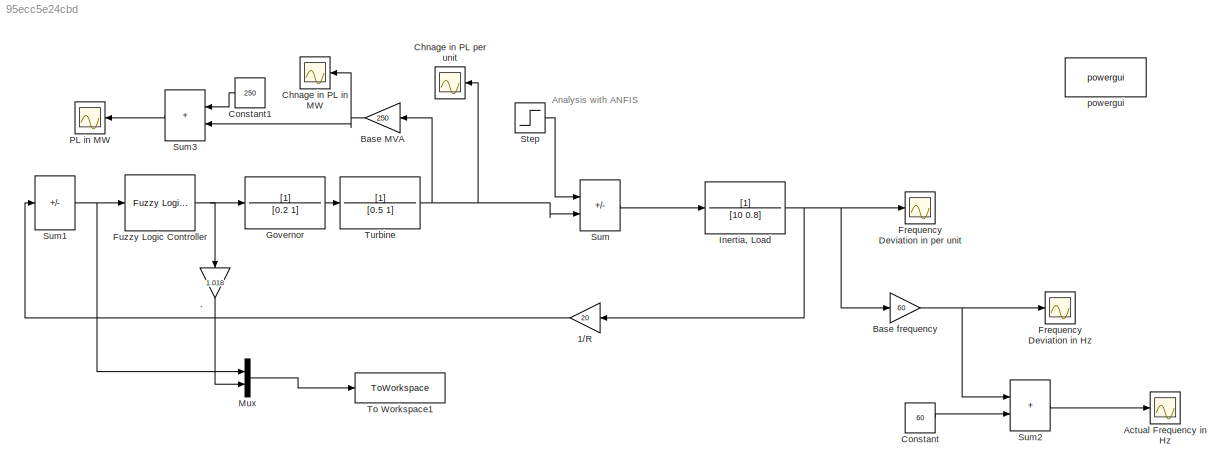
MODEL slx_95ecc5e24cbd
KIND model
CONFIG AbsTol = auto
CONFIG EnableMultiTasking = off
CONFIG FixedStep = auto
CONFIG MaxStep = auto
CONFIG MinStep = auto
CONFIG RelTol = 1e-3
CONFIG SampleTimeConstraint = Unconstrained
CONFIG Solver = VariableStepAuto
CONFIG SolverName = VariableStepAuto
CONFIG StartTime = 0.0
CONFIG StopTime = 20
BLOCK [Gain] .
  Gain = 1.018
  NameLocation = left
BLOCK [Gain] 1//R
  Gain = 20
  NameLocation = top
BLOCK [Scope] Actual Frequency in Hz
  Floating = off
  NumInputPorts = 1
  Ports = [1]
  ScopeSpecificationString = Simulink.scopes.TimeScopeBlockCfg('CurrentConfiguration', extmgr.ConfigurationSet(extmgr.Configuration('Core','General UI',true),extmgr.Configuration('Core','Source UI',true),extmgr.Configuration('Sources','WiredSimulink',true,'DataLoggingVariableName','ScopeData2'),extmgr.Configuration('Visuals','Time Domain',true,'SerializedDisplays',{struct('MinYLimReal','59.23888','MaxYLimReal','60.08457','YLa...<+1752ch>
BLOCK [Gain] Base MVA
  Gain = 250
  NameLocation = top
BLOCK [Gain] Base frequency
  Gain = 60
BLOCK [Scope] Chnage in PL in MW
  Floating = off
  NameLocation = top
  NumInputPorts = 1
  Ports = [1]
  ScopeSpecificationString = Simulink.scopes.TimeScopeBlockCfg('CurrentConfiguration', extmgr.ConfigurationSet(extmgr.Configuration('Core','General UI',true),extmgr.Configuration('Core','Source UI',true),extmgr.Configuration('Sources','WiredSimulink',true,'DataLoggingVariableName','ScopeData4'),extmgr.Configuration('Visuals','Time Domain',true,'SerializedDisplays',{struct('MinYLimReal','-7.47244','MaxYLimReal','67.25192','YLa...<+1594ch>
BLOCK [Scope] Chnage in PL per unit
  Floating = off
  NameLocation = top
  NumInputPorts = 1
  Ports = [1]
  ScopeSpecificationString = Simulink.scopes.TimeScopeBlockCfg('CurrentConfiguration', extmgr.ConfigurationSet(extmgr.Configuration('Core','General UI',true),extmgr.Configuration('Core','Source UI',true),extmgr.Configuration('Sources','WiredSimulink',true,'DataLoggingVariableName','ScopeData3'),extmgr.Configuration('Visuals','Time Domain',true,'SerializedDisplays',{struct('MinYLimReal','-0.04094','MaxYLimReal','0.36842','YLab...<+1392ch>
BLOCK [Constant] Constant
  Value = 60
BLOCK [Constant] Constant1
  NameLocation = top
  Value = 250
BLOCK [Scope] Frequency Deviation in Hz
  Floating = off
  NumInputPorts = 1
  Ports = [1]
  ScopeSpecificationString = Simulink.scopes.TimeScopeBlockCfg('CurrentConfiguration', extmgr.ConfigurationSet(extmgr.Configuration('Core','General UI',true),extmgr.Configuration('Core','Source UI',true),extmgr.Configuration('Sources','WiredSimulink',true,'DataLoggingVariableName','ScopeData1'),extmgr.Configuration('Visuals','Time Domain',true,'SerializedDisplays',{struct('MinYLimReal','-0.76112','MaxYLimReal','0.08457','YLab...<+1399ch>
BLOCK [Scope] Frequency Deviation in per unit
  Floating = off
  NumInputPorts = 1
  Ports = [1]
  ScopeSpecificationString = Simulink.scopes.TimeScopeBlockCfg('CurrentConfiguration', extmgr.ConfigurationSet(extmgr.Configuration('Core','General UI',true),extmgr.Configuration('Core','Source UI',true),extmgr.Configuration('Sources','WiredSimulink',true),extmgr.Configuration('Visuals','Time Domain',true,'SerializedDisplays',{struct('MinYLimReal','-0.01269','MaxYLimReal','0.00141','YLabelReal','','MinYLimMag','0.00000','MaxY...<+1555ch>
BLOCK [Reference] Fuzzy Logic Controller  REF=fuzblock/Fuzzy Logic   (lib defined in mdl_858b3b3e7478)
Controller
  Ports = [1, 1]
  SourceBlock = fuzblock/Fuzzy Logic \nController
  SourceProductBaseCode = FL
  SourceType = Fuzzy Inference System
BLOCK [TransferFcn] Governor
  Denominator = [0.2 1]
BLOCK [TransferFcn] Inertia, Load
  Denominator = [10 0.8]
BLOCK [Mux] Mux
  DisplayOption = bar
  Inputs = 2
  Ports = [2, 1]
BLOCK [Scope] PL in MW
  Floating = off
  NameLocation = top
  NumInputPorts = 1
  Ports = [1]
  ScopeSpecificationString = Simulink.scopes.TimeScopeBlockCfg('CurrentConfiguration', extmgr.ConfigurationSet(extmgr.Configuration('Core','General UI',true),extmgr.Configuration('Core','Source UI',true),extmgr.Configuration('Sources','WiredSimulink',true,'DataLoggingVariableName','ScopeData5'),extmgr.Configuration('Visuals','Time Domain',true,'SerializedDisplays',{struct('MinYLimReal','242.52756','MaxYLimReal','317.25192','Y...<+1626ch>
BLOCK [Step] Step
  After = 0.2
  Before = 0.2
  SampleTime = 0
  Time = 100
BLOCK [Sum] Sum
  IconShape = rectangular
  Inputs = -+
  Ports = [2, 1]
BLOCK [Sum] Sum1
  IconShape = rectangular
  Inputs = -
  Ports = [1, 1]
BLOCK [Sum] Sum2
  IconShape = rectangular
  Ports = [2, 1]
BLOCK [Sum] Sum3
  IconShape = rectangular
  NameLocation = top
  Ports = [2, 1]
BLOCK [ToWorkspace] To Workspace1
  FixptAsFi = on
  MaxDataPoints = inf
  Ports = [1]
  SampleTime = -1
  VariableName = data
BLOCK [TransferFcn] Turbine
  Denominator = [0.5 1]
BLOCK [Reference] powergui  REF=powerlib/powergui
  Ports = []
  Priority = 1
  SourceBlock = powerlib/powergui
  SourceProductBaseCode = PS
  SourceType = PSB option menu block
ANNOTATION (root): Analysis with ANFIS
LINE .:1 -> Mux:2
LINE 1//R:1 -> Sum1:1
NET Base MVA:1 -> Chnage in PL in MW:1, Sum3:2
NET Base frequency:1 -> Frequency Deviation in Hz:1, Sum2:1
LINE Constant1:1 -> Sum3:1
LINE Constant:1 -> Sum2:2
NET Fuzzy Logic Controller:1 -> .:1, Governor:1
LINE Governor:1 -> Turbine:1
NET Inertia, Load:1 -> 1//R:1, Base frequency:1, Frequency Deviation in per unit:1
LINE Mux:1 -> To Workspace1:1
LINE Step:1 -> Sum:1
NET Sum1:1 -> Fuzzy Logic Controller:1, Mux:1
LINE Sum2:1 -> Actual Frequency in Hz:1
LINE Sum3:1 -> PL in MW:1
LINE Sum:1 -> Inertia, Load:1
NET Turbine:1 -> Base MVA:1, Chnage in PL per unit:1, Sum:2
note: NET lines group one-source signal fan-out (src -> all destinations, sorted); 1:1 wires keep LINE
